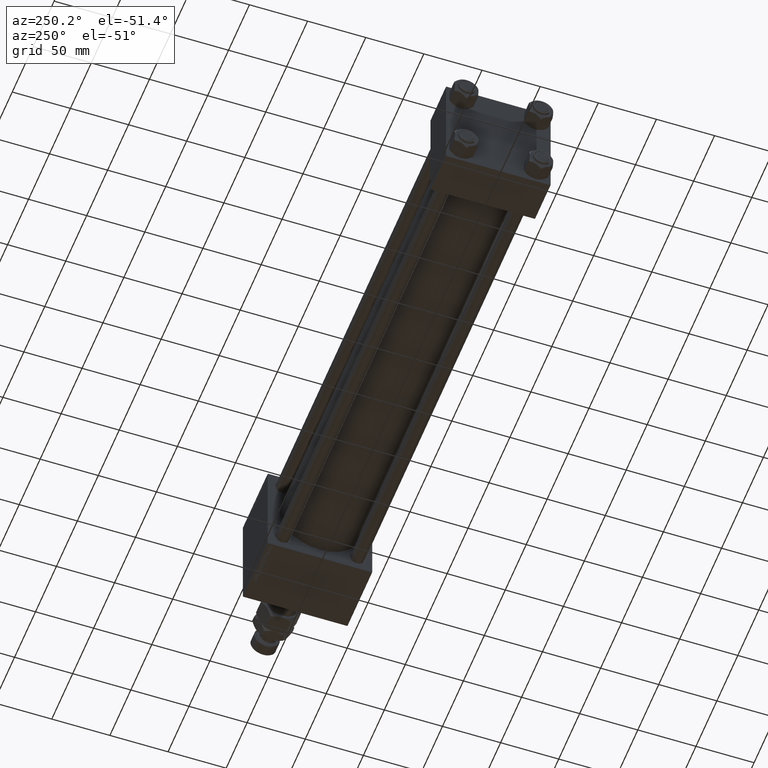
[diagram: clean part render]
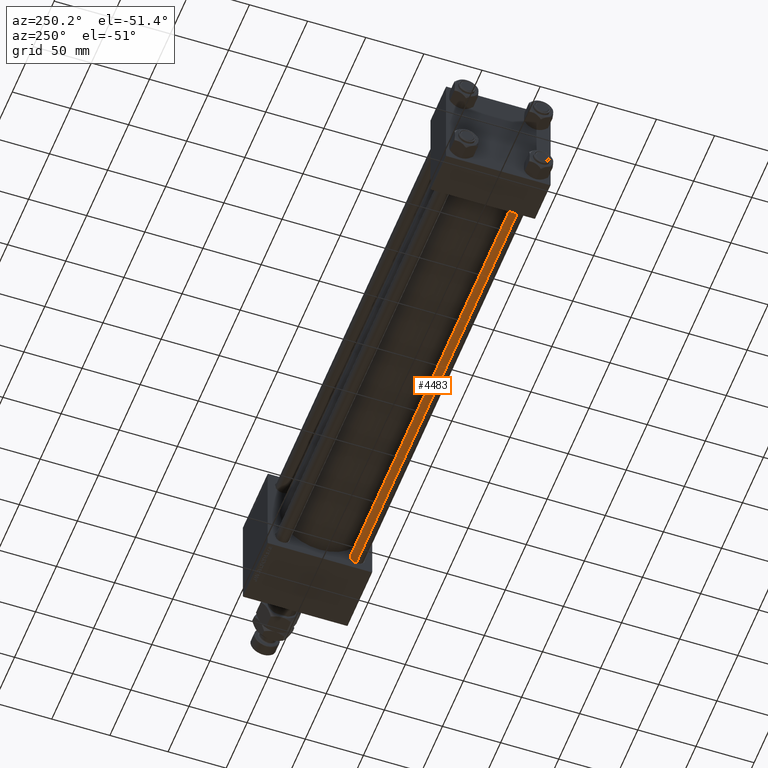
[diagram: same view with one face highlighted and labeled with its STEP entity id]
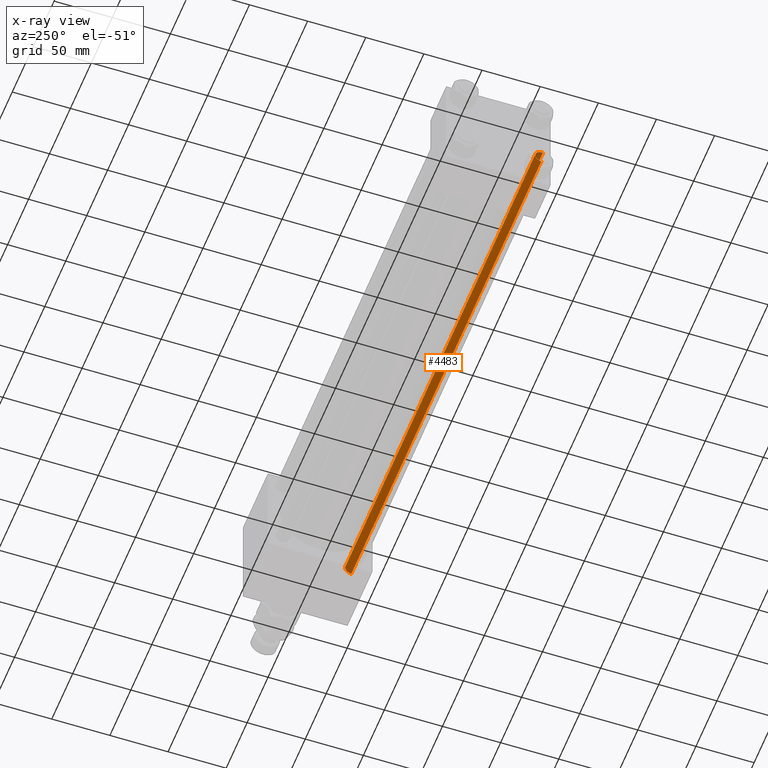
[diagram: x-ray of the same camera — body ghosted, the highlighted face saturated]
A machine part, auxiliary view. The second image highlights one B-rep face of the part: STEP entity #4483.
The next image is the same camera in x-ray: the body ghosted, the highlighted face saturated — about 0% of this face is hidden behind the body in this view.
In plain terms, the highlighted cylindrical surface (edge-blend (fillet) strip) has radius 6 mm, axis along (-1, -0, -0).
Its self-contained STEP definition (entity closure, byte-faithful):
#855 = DIRECTION ( 'NONE',  ( -0.000000000000000000, -0.000000000000000000, -1.000000000000000000 ) ) ;
#1596 = EDGE_CURVE ( 'NONE', #17520, #38791, #9269, .T. ) ;
#4018 = VECTOR ( 'NONE', #33617, 1000.000000000000000 ) ;
#4483 = ADVANCED_FACE ( 'NONE', ( #38409 ), #43161, .T. ) ;
#5153 = CARTESIAN_POINT ( 'NONE',  ( -6.000000000000000888, 0.000000000000000000, 0.5000000000002224887 ) ) ;
#6589 = DIRECTION ( 'NONE',  ( -1.000000000000000000, 0.000000000000000000, 0.000000000000000000 ) ) ;
#6974 = ORIENTED_EDGE ( 'NONE', *, *, #42080, .T. ) ;
#7774 = AXIS2_PLACEMENT_3D ( 'NONE', #8765, #21122, #25850 ) ;
#8018 = CARTESIAN_POINT ( 'NONE',  ( 0.000000000000000000, 0.000000000000000000, 0.5000000000002224887 ) ) ;
#8765 = CARTESIAN_POINT ( 'NONE',  ( 0.000000000000000000, 0.000000000000000000, 454.5000000000002842 ) ) ;
#8792 = DIRECTION ( 'NONE',  ( -0.000000000000000000, -0.000000000000000000, 1.000000000000000000 ) ) ;
#9269 = LINE ( 'NONE', #40849, #10882 ) ;
#9433 = CARTESIAN_POINT ( 'NONE',  ( 6.000000000000000888, 7.347880794884119736E-16, 455.0000000000000000 ) ) ;
#9747 = EDGE_LOOP ( 'NONE', ( #26358, #6974, #24881, #22634 ) ) ;
#10026 = CARTESIAN_POINT ( 'NONE',  ( 0.000000000000000000, 0.000000000000000000, 455.0000000000000000 ) ) ;
#10540 = DIRECTION ( 'NONE',  ( -0.000000000000000000, -0.000000000000000000, -1.000000000000000000 ) ) ;
#10882 = VECTOR ( 'NONE', #855, 1000.000000000000000 ) ;
#14954 = CARTESIAN_POINT ( 'NONE',  ( -6.000000000000000888, 0.000000000000000000, 454.5000000000002842 ) ) ;
#17520 = VERTEX_POINT ( 'NONE', #14954 ) ;
#17578 = CIRCLE ( 'NONE', #49518, 6.000000000000000888 ) ;
#20360 = CIRCLE ( 'NONE', #7774, 6.000000000000000888 ) ;
#20980 = CARTESIAN_POINT ( 'NONE',  ( 6.000000000000000888, 7.347880794884119736E-16, 454.5000000000002842 ) ) ;
#21122 = DIRECTION ( 'NONE',  ( 0.000000000000000000, 0.000000000000000000, -1.000000000000000000 ) ) ;
#22634 = ORIENTED_EDGE ( 'NONE', *, *, #35266, .T. ) ;
#24881 = ORIENTED_EDGE ( 'NONE', *, *, #1596, .T. ) ;
#25850 = DIRECTION ( 'NONE',  ( 1.000000000000000000, 0.000000000000000000, 0.000000000000000000 ) ) ;
#26358 = ORIENTED_EDGE ( 'NONE', *, *, #31437, .F. ) ;
#27382 = VERTEX_POINT ( 'NONE', #43830 ) ;
#31437 = EDGE_CURVE ( 'NONE', #48487, #27382, #48664, .T. ) ;
#33617 = DIRECTION ( 'NONE',  ( -0.000000000000000000, -0.000000000000000000, -1.000000000000000000 ) ) ;
#35266 = EDGE_CURVE ( 'NONE', #38791, #27382, #17578, .T. ) ;
#38409 = FACE_OUTER_BOUND ( 'NONE', #9747, .T. ) ;
#38791 = VERTEX_POINT ( 'NONE', #5153 ) ;
#40849 = CARTESIAN_POINT ( 'NONE',  ( -6.000000000000000888, 0.000000000000000000, 455.0000000000000000 ) ) ;
#42080 = EDGE_CURVE ( 'NONE', #48487, #17520, #20360, .T. ) ;
#43161 = CYLINDRICAL_SURFACE ( 'NONE', #50489, 6.000000000000000888 ) ;
#43830 = CARTESIAN_POINT ( 'NONE',  ( 6.000000000000000888, 7.347880794884119736E-16, 0.5000000000002224887 ) ) ;
#44079 = DIRECTION ( 'NONE',  ( 1.000000000000000000, 0.000000000000000000, 0.000000000000000000 ) ) ;
#48487 = VERTEX_POINT ( 'NONE', #20980 ) ;
#48664 = LINE ( 'NONE', #9433, #4018 ) ;
#49518 = AXIS2_PLACEMENT_3D ( 'NONE', #8018, #8792, #44079 ) ;
#50489 = AXIS2_PLACEMENT_3D ( 'NONE', #10026, #10540, #6589 ) ;